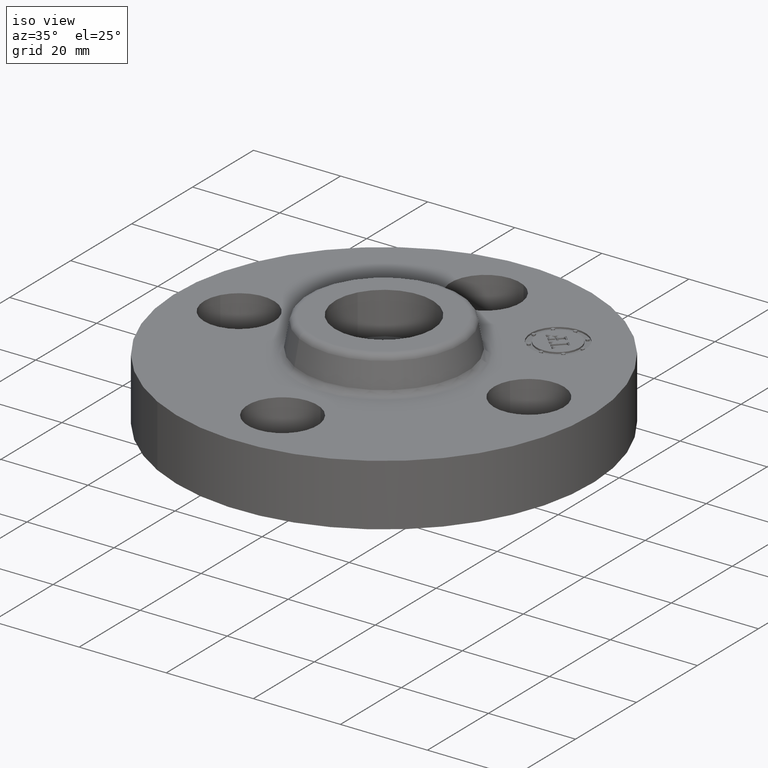
[diagram: clean part render]
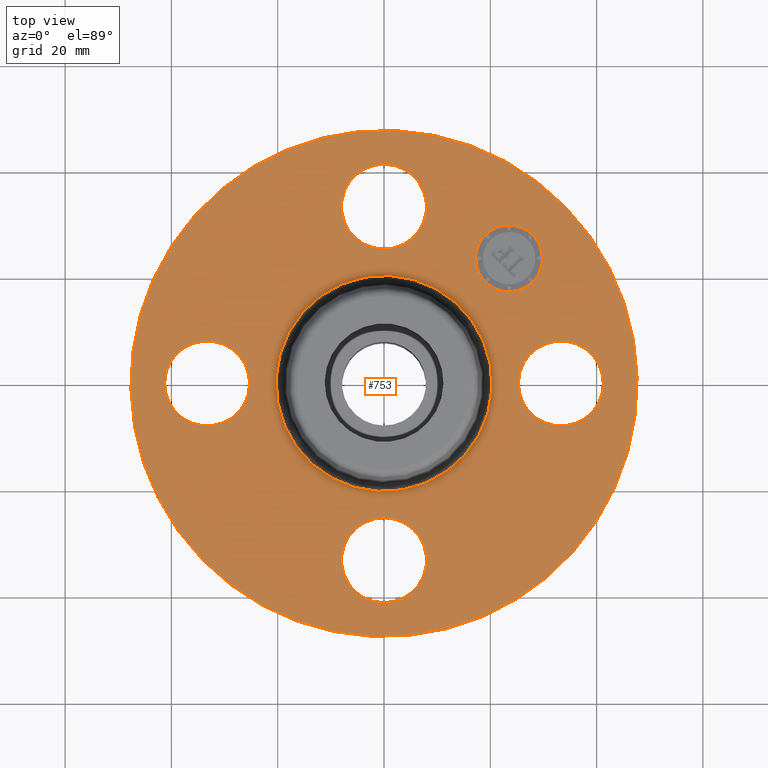
[diagram: tour spotlight — one face highlighted and labeled with its STEP entity id]
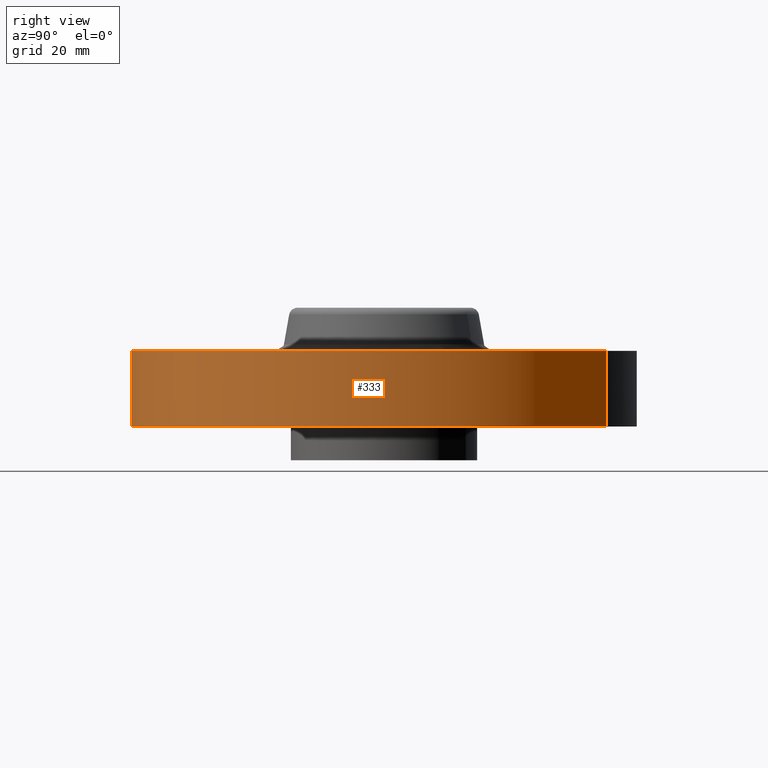
[diagram: tour spotlight — one face highlighted and labeled with its STEP entity id]
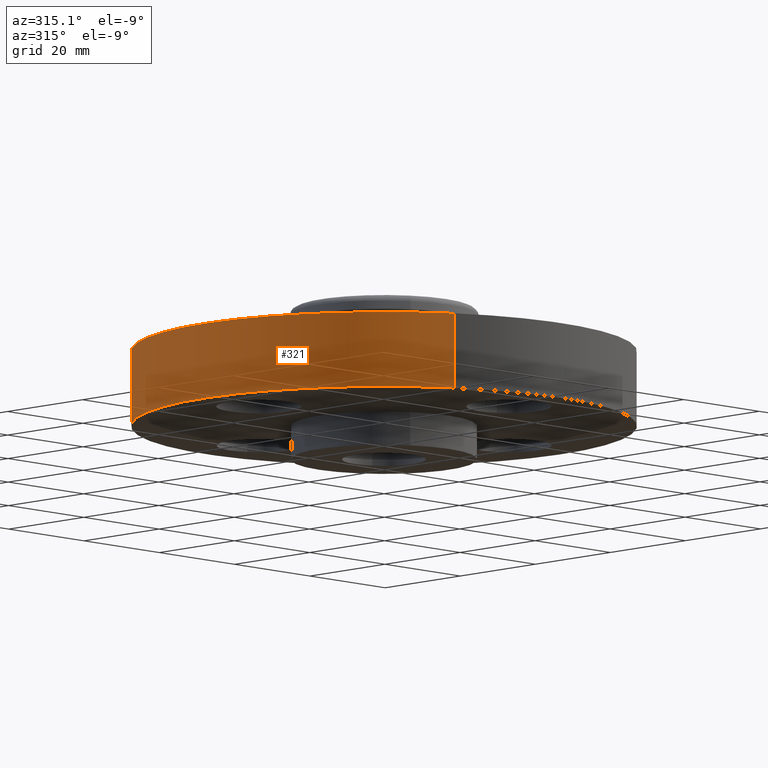
[diagram: tour spotlight — one face highlighted and labeled with its STEP entity id]
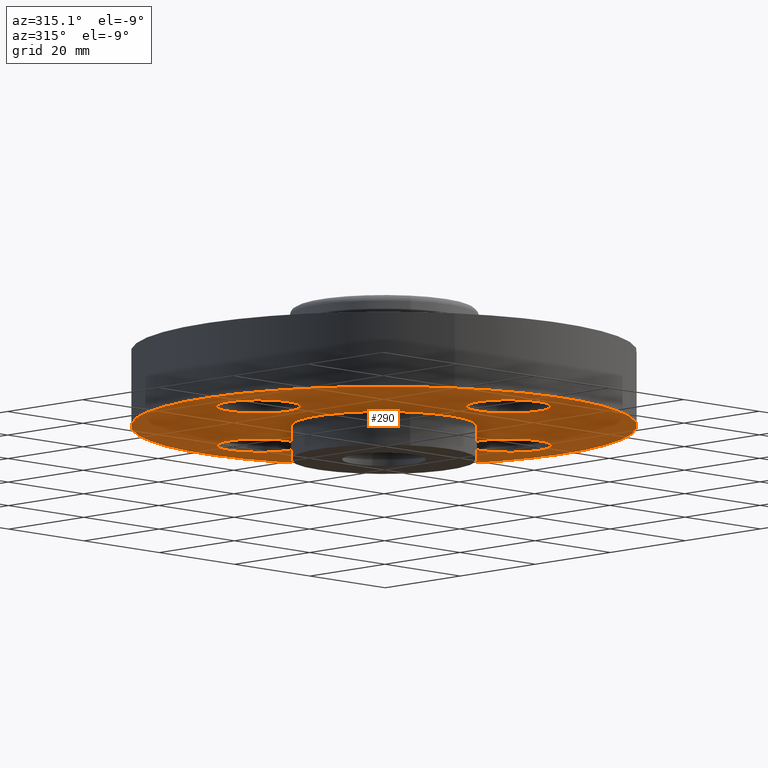
[diagram: tour spotlight — one face highlighted and labeled with its STEP entity id]
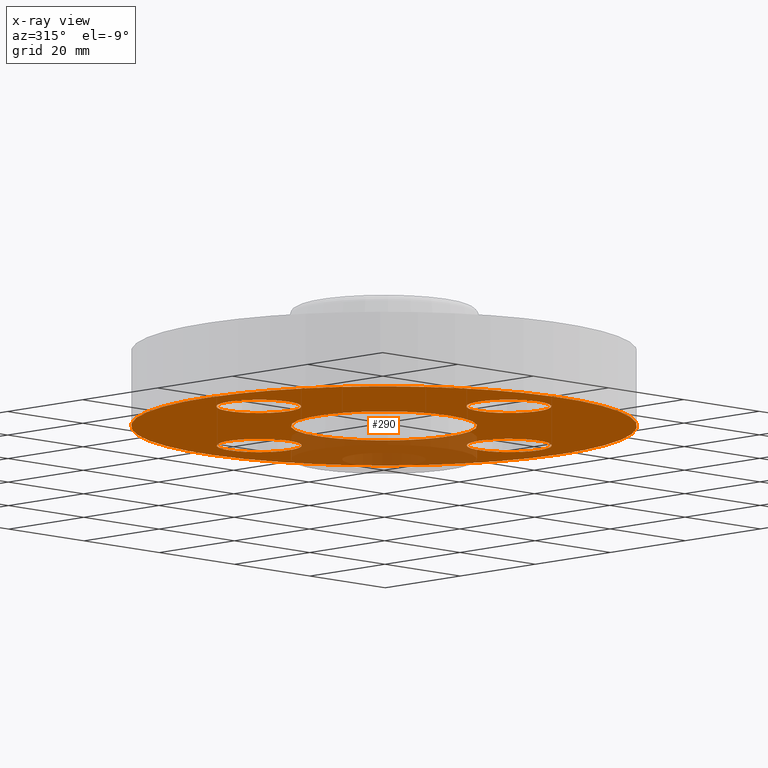
[diagram: x-ray of the same camera — body ghosted, this tour face saturated]
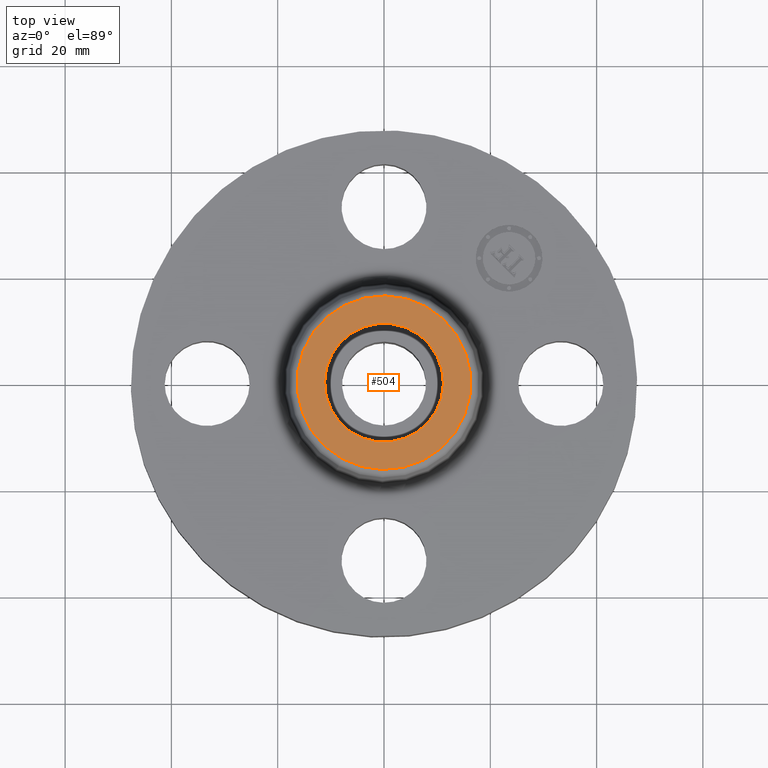
[diagram: tour spotlight — one face highlighted and labeled with its STEP entity id]
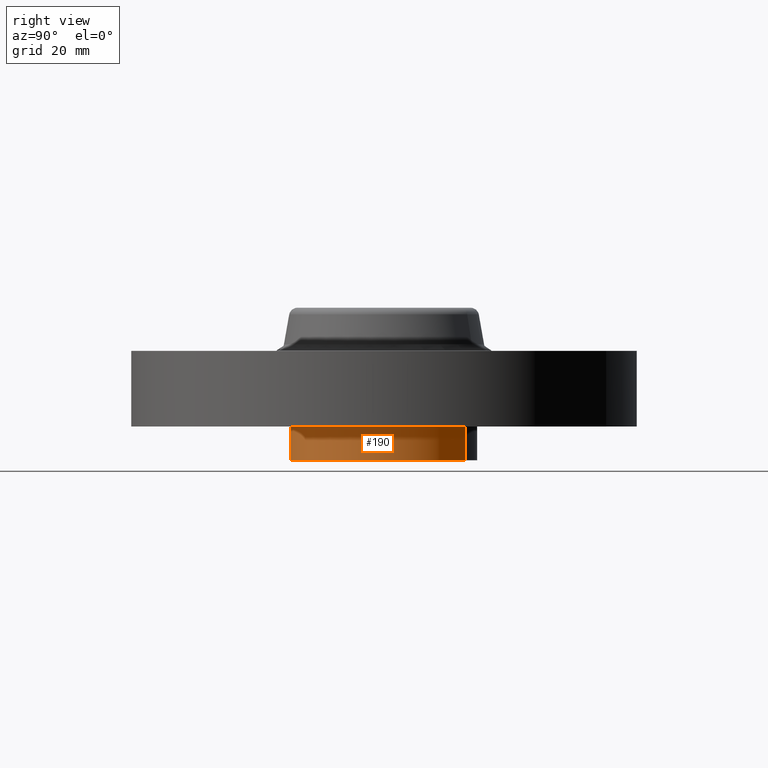
[diagram: tour spotlight — one face highlighted and labeled with its STEP entity id]
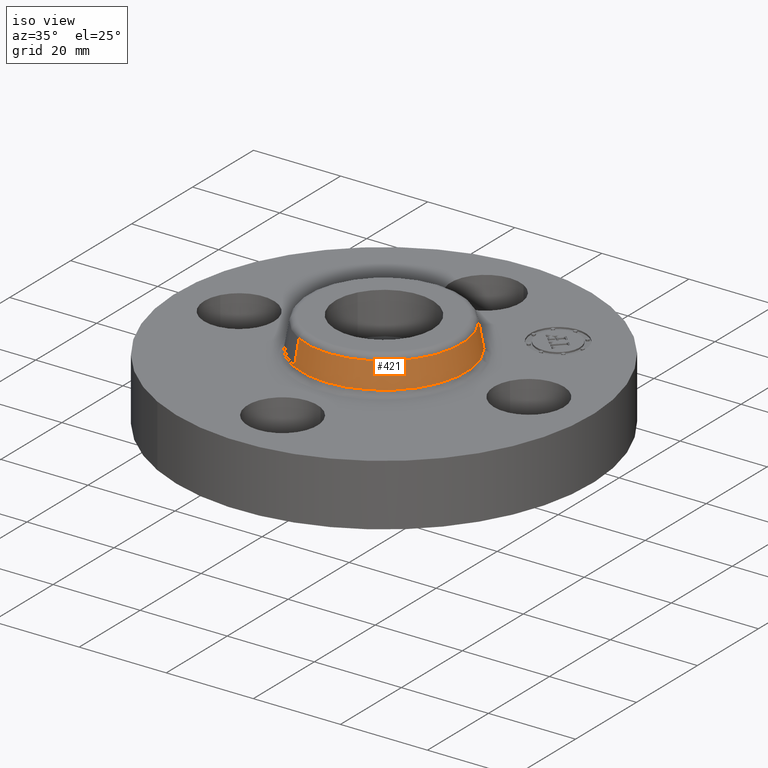
[diagram: tour spotlight — one face highlighted and labeled with its STEP entity id]
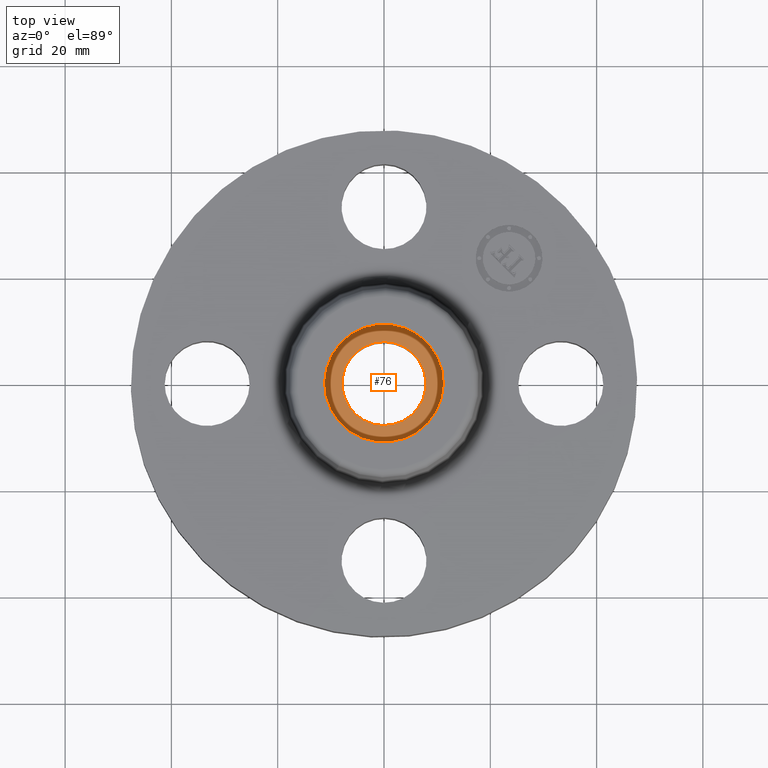
[diagram: tour spotlight — one face highlighted and labeled with its STEP entity id]
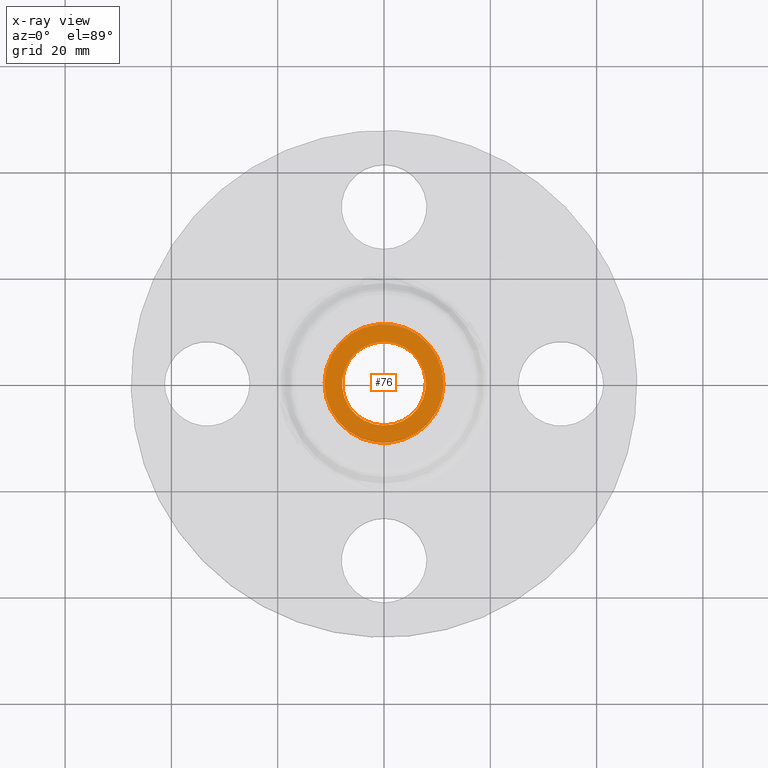
[diagram: x-ray of the same camera — body ghosted, this tour face saturated]
A machine part: a face-by-face anatomy tour. The part has 412 B-rep faces; the first image is the clean iso view, then the 8 largest visible faces are spotlighted one at a time (largest first), each with its STEP entity span.

Face 1 — top view, entity #753. In plain terms, the highlighted planar face has unit normal (0, 0, -1).
Definition (entity closure, byte-faithful):
#305=AXIS2_PLACEMENT_3D('Circle Axis2P3D',#303,#304,$) ;
#324=AXIS2_PLACEMENT_3D('Circle Axis2P3D',#322,#323,$) ;
#341=AXIS2_PLACEMENT_3D('Circle Axis2P3D',#339,#340,$) ;
#376=AXIS2_PLACEMENT_3D('Circle Axis2P3D',#374,#375,$) ;
#526=AXIS2_PLACEMENT_3D('Circle Axis2P3D',#524,#525,$) ;
#538=AXIS2_PLACEMENT_3D('Circle Axis2P3D',#536,#537,$) ;
#569=AXIS2_PLACEMENT_3D('Circle Axis2P3D',#567,#568,$) ;
#581=AXIS2_PLACEMENT_3D('Circle Axis2P3D',#579,#580,$) ;
#612=AXIS2_PLACEMENT_3D('Circle Axis2P3D',#610,#611,$) ;
#624=AXIS2_PLACEMENT_3D('Circle Axis2P3D',#622,#623,$) ;
#655=AXIS2_PLACEMENT_3D('Circle Axis2P3D',#653,#654,$) ;
#667=AXIS2_PLACEMENT_3D('Circle Axis2P3D',#665,#666,$) ;
#709=AXIS2_PLACEMENT_3D('Plane Axis2P3D',#706,#707,#708) ;
#737=AXIS2_PLACEMENT_3D('Circle Axis2P3D',#735,#736,$) ;
#746=AXIS2_PLACEMENT_3D('Circle Axis2P3D',#744,#745,$) ;
#300=CARTESIAN_POINT('Vertex',(-0.898922884886,-1.64546730355,0.560000000002)) ;
#303=CARTESIAN_POINT('Axis2P3D Location',(0.,0.,0.560000000002)) ;
#307=CARTESIAN_POINT('Vertex',(0.898922884886,1.64546730355,0.560000000002)) ;
#322=CARTESIAN_POINT('Axis2P3D Location',(0.,0.,0.560000000002)) ;
#339=CARTESIAN_POINT('Axis2P3D Location',(0.,0.,0.560000000002)) ;
#343=CARTESIAN_POINT('Vertex',(0.383706301512,0.702369673661,0.560000000002)) ;
#345=CARTESIAN_POINT('Vertex',(-0.383706301512,-0.702369673661,0.560000000002)) ;
#374=CARTESIAN_POINT('Axis2P3D Location',(0.,0.,0.560000000002)) ;
#514=CARTESIAN_POINT('Vertex',(0.151019044661,1.586438507,0.560000000002)) ;
#521=CARTESIAN_POINT('Vertex',(-0.151019044661,1.03356149301,0.560000000002)) ;
#524=CARTESIAN_POINT('Axis2P3D Location',(-2.40643096033E-016,1.31000000001,0.560000000002)) ;
#536=CARTESIAN_POINT('Axis2P3D Location',(-2.40643096033E-016,1.31000000001,0.560000000002)) ;
#557=CARTESIAN_POINT('Vertex',(-1.586438507,0.151019044661,0.560000000002)) ;
#564=CARTESIAN_POINT('Vertex',(-1.03356149301,-0.151019044661,0.560000000002)) ;
#567=CARTESIAN_POINT('Axis2P3D Location',(-1.31000000001,-1.60428730689E-016,0.560000000002)) ;
#579=CARTESIAN_POINT('Axis2P3D Location',(-1.31000000001,-1.60428730689E-016,0.560000000002)) ;
#600=CARTESIAN_POINT('Vertex',(-0.151019044661,-1.586438507,0.560000000002)) ;
#607=CARTESIAN_POINT('Vertex',(0.151019044661,-1.03356149301,0.560000000002)) ;
#610=CARTESIAN_POINT('Axis2P3D Location',(-1.99526869207E-016,-1.31000000001,0.560000000002)) ;
#622=CARTESIAN_POINT('Axis2P3D Location',(-1.99526869207E-016,-1.31000000001,0.560000000002)) ;
#643=CARTESIAN_POINT('Vertex',(1.03356149301,0.151019044661,0.560000000002)) ;
#650=CARTESIAN_POINT('Vertex',(1.586438507,-0.151019044661,0.560000000002)) ;
#653=CARTESIAN_POINT('Axis2P3D Location',(1.31000000001,0.,0.560000000002)) ;
#665=CARTESIAN_POINT('Axis2P3D Location',(1.31000000001,0.,0.560000000002)) ;
#706=CARTESIAN_POINT('Axis2P3D Location',(0.,1.87500000001,0.560000000002)) ;
#735=CARTESIAN_POINT('Axis2P3D Location',(0.926309883358,0.926309883358,0.560000000002)) ;
#739=CARTESIAN_POINT('Vertex',(0.751300955014,1.1013188117,0.560000000002)) ;
#741=CARTESIAN_POINT('Vertex',(1.1013188117,0.751300955014,0.560000000002)) ;
#744=CARTESIAN_POINT('Axis2P3D Location',(0.926309883358,0.926309883358,0.560000000002)) ;
#304=DIRECTION('Axis2P3D Direction',(0.,0.,-0.0393700787402)) ;
#323=DIRECTION('Axis2P3D Direction',(0.,0.,-0.0393700787402)) ;
#340=DIRECTION('Axis2P3D Direction',(0.,0.,-0.0393700787402)) ;
#375=DIRECTION('Axis2P3D Direction',(0.,0.,-0.0393700787402)) ;
#525=DIRECTION('Axis2P3D Direction',(0.,0.,-0.0393700787402)) ;
#537=DIRECTION('Axis2P3D Direction',(0.,0.,-0.0393700787402)) ;
#568=DIRECTION('Axis2P3D Direction',(-0.,0.,-0.0393700787402)) ;
#580=DIRECTION('Axis2P3D Direction',(-0.,0.,-0.0393700787402)) ;
#611=DIRECTION('Axis2P3D Direction',(0.,-0.,-0.0393700787402)) ;
#623=DIRECTION('Axis2P3D Direction',(0.,-0.,-0.0393700787402)) ;
#654=DIRECTION('Axis2P3D Direction',(0.,-0.,-0.0393700787402)) ;
#666=DIRECTION('Axis2P3D Direction',(0.,-0.,-0.0393700787402)) ;
#707=DIRECTION('Axis2P3D Direction',(0.,0.,-0.0393700787402)) ;
#708=DIRECTION('Axis2P3D XDirection',(0.0393700787402,0.,0.)) ;
#736=DIRECTION('Axis2P3D Direction',(0.,0.,-0.0393700787402)) ;
#745=DIRECTION('Axis2P3D Direction',(0.,0.,-0.0393700787402)) ;
#712=ORIENTED_EDGE('',*,*,#326,.F.) ;
#713=ORIENTED_EDGE('',*,*,#309,.F.) ;
#716=ORIENTED_EDGE('',*,*,#657,.T.) ;
#717=ORIENTED_EDGE('',*,*,#669,.T.) ;
#720=ORIENTED_EDGE('',*,*,#378,.T.) ;
#721=ORIENTED_EDGE('',*,*,#347,.T.) ;
#724=ORIENTED_EDGE('',*,*,#614,.T.) ;
#725=ORIENTED_EDGE('',*,*,#626,.T.) ;
#728=ORIENTED_EDGE('',*,*,#571,.T.) ;
#729=ORIENTED_EDGE('',*,*,#583,.T.) ;
#732=ORIENTED_EDGE('',*,*,#528,.T.) ;
#733=ORIENTED_EDGE('',*,*,#540,.T.) ;
#750=ORIENTED_EDGE('',*,*,#743,.T.) ;
#751=ORIENTED_EDGE('',*,*,#748,.T.) ;
#718=FACE_BOUND('',#715,.T.) ;
#722=FACE_BOUND('',#719,.T.) ;
#726=FACE_BOUND('',#723,.T.) ;
#730=FACE_BOUND('',#727,.T.) ;
#734=FACE_BOUND('',#731,.T.) ;
#752=FACE_BOUND('',#749,.T.) ;
#753=ADVANCED_FACE('PartBody',(#714,#718,#722,#726,#730,#734,#752),#710,.F.) ;
#306=CIRCLE('generated circle',#305,1.87500000001) ;
#325=CIRCLE('generated circle',#324,1.87500000001) ;
#342=CIRCLE('generated circle',#341,0.800345977874) ;
#377=CIRCLE('generated circle',#376,0.800345977874) ;
#527=CIRCLE('generated circle',#526,0.315000000001) ;
#539=CIRCLE('generated circle',#538,0.315000000001) ;
#570=CIRCLE('generated circle',#569,0.315000000001) ;
#582=CIRCLE('generated circle',#581,0.315000000001) ;
#613=CIRCLE('generated circle',#612,0.315000000001) ;
#625=CIRCLE('generated circle',#624,0.315000000001) ;
#656=CIRCLE('generated circle',#655,0.315000000001) ;
#668=CIRCLE('generated circle',#667,0.315000000001) ;
#738=CIRCLE('generated circle',#737,0.247500000001) ;
#747=CIRCLE('generated circle',#746,0.247500000001) ;
#309=EDGE_CURVE('',#301,#308,#306,.T.) ;
#326=EDGE_CURVE('',#308,#301,#325,.T.) ;
#347=EDGE_CURVE('',#344,#346,#342,.T.) ;
#378=EDGE_CURVE('',#346,#344,#377,.T.) ;
#528=EDGE_CURVE('',#515,#522,#527,.T.) ;
#540=EDGE_CURVE('',#522,#515,#539,.T.) ;
#571=EDGE_CURVE('',#558,#565,#570,.T.) ;
#583=EDGE_CURVE('',#565,#558,#582,.T.) ;
#614=EDGE_CURVE('',#601,#608,#613,.T.) ;
#626=EDGE_CURVE('',#608,#601,#625,.T.) ;
#657=EDGE_CURVE('',#644,#651,#656,.T.) ;
#669=EDGE_CURVE('',#651,#644,#668,.T.) ;
#743=EDGE_CURVE('',#740,#742,#738,.T.) ;
#748=EDGE_CURVE('',#742,#740,#747,.T.) ;
#711=EDGE_LOOP('',(#712,#713)) ;
#715=EDGE_LOOP('',(#716,#717)) ;
#719=EDGE_LOOP('',(#720,#721)) ;
#723=EDGE_LOOP('',(#724,#725)) ;
#727=EDGE_LOOP('',(#728,#729)) ;
#731=EDGE_LOOP('',(#732,#733)) ;
#749=EDGE_LOOP('',(#750,#751)) ;
#714=FACE_OUTER_BOUND('',#711,.T.) ;
#710=PLANE('',#709) ;
#301=VERTEX_POINT('',#300) ;
#308=VERTEX_POINT('',#307) ;
#344=VERTEX_POINT('',#343) ;
#346=VERTEX_POINT('',#345) ;
#515=VERTEX_POINT('',#514) ;
#522=VERTEX_POINT('',#521) ;
#558=VERTEX_POINT('',#557) ;
#565=VERTEX_POINT('',#564) ;
#601=VERTEX_POINT('',#600) ;
#608=VERTEX_POINT('',#607) ;
#644=VERTEX_POINT('',#643) ;
#651=VERTEX_POINT('',#650) ;
#740=VERTEX_POINT('',#739) ;
#742=VERTEX_POINT('',#741) ;

Face 2 — right view, entity #333. In plain terms, the highlighted cylindrical surface (partial cylindrical patch) has radius 47.625 mm, axis along (0, 0, -1).
Definition (entity closure, byte-faithful):
#207=AXIS2_PLACEMENT_3D('Circle Axis2P3D',#205,#206,$) ;
#294=AXIS2_PLACEMENT_3D('Cylinder Axis2P3D',#291,#292,#293) ;
#324=AXIS2_PLACEMENT_3D('Circle Axis2P3D',#322,#323,$) ;
#200=CARTESIAN_POINT('Vertex',(-0.898922884886,-1.64546730355,0.)) ;
#202=CARTESIAN_POINT('Vertex',(0.898922884886,1.64546730355,0.)) ;
#205=CARTESIAN_POINT('Axis2P3D Location',(0.,0.,0.)) ;
#291=CARTESIAN_POINT('Axis2P3D Location',(0.,0.,0.315000000001)) ;
#296=CARTESIAN_POINT('Line Origine',(-0.898922884886,-1.64546730355,0.280000000001)) ;
#300=CARTESIAN_POINT('Vertex',(-0.898922884886,-1.64546730355,0.560000000002)) ;
#307=CARTESIAN_POINT('Vertex',(0.898922884886,1.64546730355,0.560000000002)) ;
#310=CARTESIAN_POINT('Line Origine',(0.898922884886,1.64546730355,0.280000000001)) ;
#322=CARTESIAN_POINT('Axis2P3D Location',(0.,0.,0.560000000002)) ;
#206=DIRECTION('Axis2P3D Direction',(0.,0.,-0.0393700787402)) ;
#292=DIRECTION('Axis2P3D Direction',(0.,0.,-0.0393700787402)) ;
#293=DIRECTION('Axis2P3D XDirection',(0.0188750212049,0.0345504945626,0.)) ;
#297=DIRECTION('Vector Direction',(0.,0.,-0.0393700787402)) ;
#311=DIRECTION('Vector Direction',(0.,0.,-0.0393700787402)) ;
#323=DIRECTION('Axis2P3D Direction',(0.,0.,-0.0393700787402)) ;
#298=VECTOR('Line Direction',#297,0.0393700787402) ;
#312=VECTOR('Line Direction',#311,0.0393700787402) ;
#328=ORIENTED_EDGE('',*,*,#209,.F.) ;
#329=ORIENTED_EDGE('',*,*,#314,.T.) ;
#330=ORIENTED_EDGE('',*,*,#326,.T.) ;
#331=ORIENTED_EDGE('',*,*,#302,.F.) ;
#333=ADVANCED_FACE('PartBody',(#332),#295,.T.) ;
#208=CIRCLE('generated circle',#207,1.87500000001) ;
#325=CIRCLE('generated circle',#324,1.87500000001) ;
#295=CYLINDRICAL_SURFACE('generated cylinder',#294,1.87500000001) ;
#209=EDGE_CURVE('',#203,#201,#208,.T.) ;
#302=EDGE_CURVE('',#201,#301,#299,.F.) ;
#314=EDGE_CURVE('',#203,#308,#313,.F.) ;
#326=EDGE_CURVE('',#308,#301,#325,.T.) ;
#327=EDGE_LOOP('',(#328,#329,#330,#331)) ;
#332=FACE_OUTER_BOUND('',#327,.T.) ;
#299=LINE('Line',#296,#298) ;
#313=LINE('Line',#310,#312) ;
#201=VERTEX_POINT('',#200) ;
#203=VERTEX_POINT('',#202) ;
#301=VERTEX_POINT('',#300) ;
#308=VERTEX_POINT('',#307) ;

Face 3 — auxiliary view, entity #321. In plain terms, the highlighted cylindrical surface (partial cylindrical patch) has radius 47.625 mm, axis along (0, 0, -1).
Definition (entity closure, byte-faithful):
#198=AXIS2_PLACEMENT_3D('Circle Axis2P3D',#196,#197,$) ;
#294=AXIS2_PLACEMENT_3D('Cylinder Axis2P3D',#291,#292,#293) ;
#305=AXIS2_PLACEMENT_3D('Circle Axis2P3D',#303,#304,$) ;
#196=CARTESIAN_POINT('Axis2P3D Location',(0.,0.,0.)) ;
#200=CARTESIAN_POINT('Vertex',(-0.898922884886,-1.64546730355,0.)) ;
#202=CARTESIAN_POINT('Vertex',(0.898922884886,1.64546730355,0.)) ;
#291=CARTESIAN_POINT('Axis2P3D Location',(0.,0.,0.315000000001)) ;
#296=CARTESIAN_POINT('Line Origine',(-0.898922884886,-1.64546730355,0.280000000001)) ;
#300=CARTESIAN_POINT('Vertex',(-0.898922884886,-1.64546730355,0.560000000002)) ;
#303=CARTESIAN_POINT('Axis2P3D Location',(0.,0.,0.560000000002)) ;
#307=CARTESIAN_POINT('Vertex',(0.898922884886,1.64546730355,0.560000000002)) ;
#310=CARTESIAN_POINT('Line Origine',(0.898922884886,1.64546730355,0.280000000001)) ;
#197=DIRECTION('Axis2P3D Direction',(0.,0.,-0.0393700787402)) ;
#292=DIRECTION('Axis2P3D Direction',(0.,0.,-0.0393700787402)) ;
#293=DIRECTION('Axis2P3D XDirection',(0.0188750212049,0.0345504945626,0.)) ;
#297=DIRECTION('Vector Direction',(0.,0.,-0.0393700787402)) ;
#304=DIRECTION('Axis2P3D Direction',(0.,0.,-0.0393700787402)) ;
#311=DIRECTION('Vector Direction',(0.,0.,-0.0393700787402)) ;
#298=VECTOR('Line Direction',#297,0.0393700787402) ;
#312=VECTOR('Line Direction',#311,0.0393700787402) ;
#316=ORIENTED_EDGE('',*,*,#204,.F.) ;
#317=ORIENTED_EDGE('',*,*,#302,.T.) ;
#318=ORIENTED_EDGE('',*,*,#309,.T.) ;
#319=ORIENTED_EDGE('',*,*,#314,.F.) ;
#321=ADVANCED_FACE('PartBody',(#320),#295,.T.) ;
#199=CIRCLE('generated circle',#198,1.87500000001) ;
#306=CIRCLE('generated circle',#305,1.87500000001) ;
#295=CYLINDRICAL_SURFACE('generated cylinder',#294,1.87500000001) ;
#204=EDGE_CURVE('',#201,#203,#199,.T.) ;
#302=EDGE_CURVE('',#201,#301,#299,.F.) ;
#309=EDGE_CURVE('',#301,#308,#306,.T.) ;
#314=EDGE_CURVE('',#203,#308,#313,.F.) ;
#315=EDGE_LOOP('',(#316,#317,#318,#319)) ;
#320=FACE_OUTER_BOUND('',#315,.T.) ;
#299=LINE('Line',#296,#298) ;
#313=LINE('Line',#310,#312) ;
#201=VERTEX_POINT('',#200) ;
#203=VERTEX_POINT('',#202) ;
#301=VERTEX_POINT('',#300) ;
#308=VERTEX_POINT('',#307) ;

Face 4 — auxiliary view, entity #290. An x-ray twin of the same camera follows (body ghosted, this face saturated) — the face is partly hidden behind the body. In plain terms, the highlighted planar face has unit normal (0, 0, -1).
Definition (entity closure, byte-faithful):
#162=AXIS2_PLACEMENT_3D('Circle Axis2P3D',#160,#161,$) ;
#181=AXIS2_PLACEMENT_3D('Circle Axis2P3D',#179,#180,$) ;
#194=AXIS2_PLACEMENT_3D('Plane Axis2P3D',#191,#192,#193) ;
#198=AXIS2_PLACEMENT_3D('Circle Axis2P3D',#196,#197,$) ;
#207=AXIS2_PLACEMENT_3D('Circle Axis2P3D',#205,#206,$) ;
#216=AXIS2_PLACEMENT_3D('Circle Axis2P3D',#214,#215,$) ;
#225=AXIS2_PLACEMENT_3D('Circle Axis2P3D',#223,#224,$) ;
#238=AXIS2_PLACEMENT_3D('Circle Axis2P3D',#236,#237,$) ;
#247=AXIS2_PLACEMENT_3D('Circle Axis2P3D',#245,#246,$) ;
#256=AXIS2_PLACEMENT_3D('Circle Axis2P3D',#254,#255,$) ;
#265=AXIS2_PLACEMENT_3D('Circle Axis2P3D',#263,#264,$) ;
#274=AXIS2_PLACEMENT_3D('Circle Axis2P3D',#272,#273,$) ;
#283=AXIS2_PLACEMENT_3D('Circle Axis2P3D',#281,#282,$) ;
#157=CARTESIAN_POINT('Vertex',(-0.330803621638,-0.605531967707,1.39870617276E-016)) ;
#160=CARTESIAN_POINT('Axis2P3D Location',(0.,0.,1.39870617276E-016)) ;
#164=CARTESIAN_POINT('Vertex',(0.330803621638,0.605531967707,1.39870617276E-016)) ;
#179=CARTESIAN_POINT('Axis2P3D Location',(0.,0.,1.39870617276E-016)) ;
#191=CARTESIAN_POINT('Axis2P3D Location',(0.,0.690000000003,0.)) ;
#196=CARTESIAN_POINT('Axis2P3D Location',(0.,0.,0.)) ;
#200=CARTESIAN_POINT('Vertex',(-0.898922884886,-1.64546730355,0.)) ;
#202=CARTESIAN_POINT('Vertex',(0.898922884886,1.64546730355,0.)) ;
#205=CARTESIAN_POINT('Axis2P3D Location',(0.,0.,0.)) ;
#214=CARTESIAN_POINT('Axis2P3D Location',(1.31000000001,1.39870617276E-016,0.)) ;
#218=CARTESIAN_POINT('Vertex',(1.586438507,-0.151019044661,6.99353086378E-017)) ;
#220=CARTESIAN_POINT('Vertex',(1.03356149301,0.151019044661,6.99353086378E-017)) ;
#223=CARTESIAN_POINT('Axis2P3D Location',(1.31000000001,-1.39870617276E-016,0.)) ;
#236=CARTESIAN_POINT('Axis2P3D Location',(-3.49676543189E-017,-1.31000000001,0.)) ;
#240=CARTESIAN_POINT('Vertex',(0.151019044661,-1.03356149301,0.)) ;
#242=CARTESIAN_POINT('Vertex',(-0.151019044661,-1.586438507,6.99353086378E-017)) ;
#245=CARTESIAN_POINT('Axis2P3D Location',(-1.39870617276E-016,-1.31000000001,0.)) ;
#254=CARTESIAN_POINT('Axis2P3D Location',(-1.31000000001,-1.39870617276E-016,0.)) ;
#258=CARTESIAN_POINT('Vertex',(-1.03356149301,-0.151019044661,0.)) ;
#260=CARTESIAN_POINT('Vertex',(-1.586438507,0.151019044661,6.99353086378E-017)) ;
#263=CARTESIAN_POINT('Axis2P3D Location',(-1.31000000001,0.,0.)) ;
#272=CARTESIAN_POINT('Axis2P3D Location',(-3.1470888887E-016,1.31000000001,0.)) ;
#276=CARTESIAN_POINT('Vertex',(-0.151019044661,1.03356149301,0.)) ;
#278=CARTESIAN_POINT('Vertex',(0.151019044661,1.586438507,6.99353086378E-017)) ;
#281=CARTESIAN_POINT('Axis2P3D Location',(-3.1470888887E-016,1.31000000001,0.)) ;
#161=DIRECTION('Axis2P3D Direction',(0.,0.,-0.0393700787402)) ;
#180=DIRECTION('Axis2P3D Direction',(0.,0.,-0.0393700787402)) ;
#192=DIRECTION('Axis2P3D Direction',(0.,0.,-0.0393700787402)) ;
#193=DIRECTION('Axis2P3D XDirection',(0.0393700787402,0.,0.)) ;
#197=DIRECTION('Axis2P3D Direction',(0.,0.,-0.0393700787402)) ;
#206=DIRECTION('Axis2P3D Direction',(0.,0.,-0.0393700787402)) ;
#215=DIRECTION('Axis2P3D Direction',(0.,0.,-0.0393700787402)) ;
#224=DIRECTION('Axis2P3D Direction',(0.,0.,-0.0393700787402)) ;
#237=DIRECTION('Axis2P3D Direction',(0.,0.,-0.0393700787402)) ;
#246=DIRECTION('Axis2P3D Direction',(0.,0.,-0.0393700787402)) ;
#255=DIRECTION('Axis2P3D Direction',(0.,0.,-0.0393700787402)) ;
#264=DIRECTION('Axis2P3D Direction',(0.,0.,-0.0393700787402)) ;
#273=DIRECTION('Axis2P3D Direction',(0.,0.,-0.0393700787402)) ;
#282=DIRECTION('Axis2P3D Direction',(0.,0.,-0.0393700787402)) ;
#211=ORIENTED_EDGE('',*,*,#204,.T.) ;
#212=ORIENTED_EDGE('',*,*,#209,.T.) ;
#229=ORIENTED_EDGE('',*,*,#222,.F.) ;
#230=ORIENTED_EDGE('',*,*,#227,.F.) ;
#233=ORIENTED_EDGE('',*,*,#183,.F.) ;
#234=ORIENTED_EDGE('',*,*,#166,.F.) ;
#251=ORIENTED_EDGE('',*,*,#244,.F.) ;
#252=ORIENTED_EDGE('',*,*,#249,.F.) ;
#269=ORIENTED_EDGE('',*,*,#262,.F.) ;
#270=ORIENTED_EDGE('',*,*,#267,.F.) ;
#287=ORIENTED_EDGE('',*,*,#280,.F.) ;
#288=ORIENTED_EDGE('',*,*,#285,.F.) ;
#231=FACE_BOUND('',#228,.T.) ;
#235=FACE_BOUND('',#232,.T.) ;
#253=FACE_BOUND('',#250,.T.) ;
#271=FACE_BOUND('',#268,.T.) ;
#289=FACE_BOUND('',#286,.T.) ;
#290=ADVANCED_FACE('PartBody',(#213,#231,#235,#253,#271,#289),#195,.T.) ;
#163=CIRCLE('generated circle',#162,0.690000000003) ;
#182=CIRCLE('generated circle',#181,0.690000000003) ;
#199=CIRCLE('generated circle',#198,1.87500000001) ;
#208=CIRCLE('generated circle',#207,1.87500000001) ;
#217=CIRCLE('generated circle',#216,0.315000000001) ;
#226=CIRCLE('generated circle',#225,0.315000000001) ;
#239=CIRCLE('generated circle',#238,0.315000000001) ;
#248=CIRCLE('generated circle',#247,0.315000000001) ;
#257=CIRCLE('generated circle',#256,0.315000000001) ;
#266=CIRCLE('generated circle',#265,0.315000000001) ;
#275=CIRCLE('generated circle',#274,0.315000000001) ;
#284=CIRCLE('generated circle',#283,0.315000000001) ;
#166=EDGE_CURVE('',#158,#165,#163,.T.) ;
#183=EDGE_CURVE('',#165,#158,#182,.T.) ;
#204=EDGE_CURVE('',#201,#203,#199,.T.) ;
#209=EDGE_CURVE('',#203,#201,#208,.T.) ;
#222=EDGE_CURVE('',#219,#221,#217,.T.) ;
#227=EDGE_CURVE('',#221,#219,#226,.T.) ;
#244=EDGE_CURVE('',#241,#243,#239,.T.) ;
#249=EDGE_CURVE('',#243,#241,#248,.T.) ;
#262=EDGE_CURVE('',#259,#261,#257,.T.) ;
#267=EDGE_CURVE('',#261,#259,#266,.T.) ;
#280=EDGE_CURVE('',#277,#279,#275,.T.) ;
#285=EDGE_CURVE('',#279,#277,#284,.T.) ;
#210=EDGE_LOOP('',(#211,#212)) ;
#228=EDGE_LOOP('',(#229,#230)) ;
#232=EDGE_LOOP('',(#233,#234)) ;
#250=EDGE_LOOP('',(#251,#252)) ;
#268=EDGE_LOOP('',(#269,#270)) ;
#286=EDGE_LOOP('',(#287,#288)) ;
#213=FACE_OUTER_BOUND('',#210,.T.) ;
#195=PLANE('',#194) ;
#158=VERTEX_POINT('',#157) ;
#165=VERTEX_POINT('',#164) ;
#201=VERTEX_POINT('',#200) ;
#203=VERTEX_POINT('',#202) ;
#219=VERTEX_POINT('',#218) ;
#221=VERTEX_POINT('',#220) ;
#241=VERTEX_POINT('',#240) ;
#243=VERTEX_POINT('',#242) ;
#259=VERTEX_POINT('',#258) ;
#261=VERTEX_POINT('',#260) ;
#277=VERTEX_POINT('',#276) ;
#279=VERTEX_POINT('',#278) ;

Face 5 — top view, entity #504. In plain terms, the highlighted planar face has unit normal (0, 0, -1).
Definition (entity closure, byte-faithful):
#448=AXIS2_PLACEMENT_3D('Circle Axis2P3D',#446,#447,$) ;
#467=AXIS2_PLACEMENT_3D('Circle Axis2P3D',#465,#466,$) ;
#480=AXIS2_PLACEMENT_3D('Plane Axis2P3D',#477,#478,#479) ;
#488=AXIS2_PLACEMENT_3D('Circle Axis2P3D',#486,#487,$) ;
#497=AXIS2_PLACEMENT_3D('Circle Axis2P3D',#495,#496,$) ;
#443=CARTESIAN_POINT('Vertex',(0.308380595934,0.564486894472,0.880000000004)) ;
#446=CARTESIAN_POINT('Axis2P3D Location',(0.,0.,0.880000000004)) ;
#450=CARTESIAN_POINT('Vertex',(-0.308380595934,-0.564486894472,0.880000000004)) ;
#465=CARTESIAN_POINT('Axis2P3D Location',(0.,0.,0.880000000004)) ;
#477=CARTESIAN_POINT('Axis2P3D Location',(0.,0.643229388305,0.880000000004)) ;
#486=CARTESIAN_POINT('Axis2P3D Location',(1.39870617276E-016,1.39870617276E-016,0.880000000004)) ;
#490=CARTESIAN_POINT('Vertex',(-0.386136327233,0.210947236987,0.880000000004)) ;
#492=CARTESIAN_POINT('Vertex',(0.386136327233,-0.210947236987,0.880000000004)) ;
#495=CARTESIAN_POINT('Axis2P3D Location',(1.57354444435E-016,1.39870617276E-016,0.880000000004)) ;
#447=DIRECTION('Axis2P3D Direction',(0.,0.,-0.0393700787402)) ;
#466=DIRECTION('Axis2P3D Direction',(0.,0.,-0.0393700787402)) ;
#478=DIRECTION('Axis2P3D Direction',(0.,0.,-0.0393700787402)) ;
#479=DIRECTION('Axis2P3D XDirection',(0.0393700787402,0.,0.)) ;
#487=DIRECTION('Axis2P3D Direction',(0.,0.,-0.0393700787402)) ;
#496=DIRECTION('Axis2P3D Direction',(0.,0.,-0.0393700787402)) ;
#483=ORIENTED_EDGE('',*,*,#452,.F.) ;
#484=ORIENTED_EDGE('',*,*,#469,.F.) ;
#501=ORIENTED_EDGE('',*,*,#494,.T.) ;
#502=ORIENTED_EDGE('',*,*,#499,.T.) ;
#503=FACE_BOUND('',#500,.T.) ;
#504=ADVANCED_FACE('PartBody',(#485,#503),#481,.F.) ;
#449=CIRCLE('generated circle',#448,0.643229388305) ;
#468=CIRCLE('generated circle',#467,0.643229388305) ;
#489=CIRCLE('generated circle',#488,0.440000000002) ;
#498=CIRCLE('generated circle',#497,0.440000000002) ;
#452=EDGE_CURVE('',#444,#451,#449,.T.) ;
#469=EDGE_CURVE('',#451,#444,#468,.T.) ;
#494=EDGE_CURVE('',#491,#493,#489,.T.) ;
#499=EDGE_CURVE('',#493,#491,#498,.T.) ;
#482=EDGE_LOOP('',(#483,#484)) ;
#500=EDGE_LOOP('',(#501,#502)) ;
#485=FACE_OUTER_BOUND('',#482,.T.) ;
#481=PLANE('',#480) ;
#444=VERTEX_POINT('',#443) ;
#451=VERTEX_POINT('',#450) ;
#491=VERTEX_POINT('',#490) ;
#493=VERTEX_POINT('',#492) ;

Face 6 — right view, entity #190. In plain terms, the highlighted cylindrical surface (partial cylindrical patch) has radius 17.526 mm, axis along (0, 0, -1).
Definition (entity closure, byte-faithful):
#136=AXIS2_PLACEMENT_3D('Circle Axis2P3D',#134,#135,$) ;
#151=AXIS2_PLACEMENT_3D('Cylinder Axis2P3D',#148,#149,#150) ;
#181=AXIS2_PLACEMENT_3D('Circle Axis2P3D',#179,#180,$) ;
#129=CARTESIAN_POINT('Vertex',(-0.330803621638,-0.605531967707,-0.250000000001)) ;
#131=CARTESIAN_POINT('Vertex',(0.330803621638,0.605531967707,-0.250000000001)) ;
#134=CARTESIAN_POINT('Axis2P3D Location',(0.,0.,-0.250000000001)) ;
#148=CARTESIAN_POINT('Axis2P3D Location',(0.,0.,0.315000000001)) ;
#153=CARTESIAN_POINT('Line Origine',(-0.330803621638,-0.605531967707,-0.125)) ;
#157=CARTESIAN_POINT('Vertex',(-0.330803621638,-0.605531967707,1.39870617276E-016)) ;
#164=CARTESIAN_POINT('Vertex',(0.330803621638,0.605531967707,1.39870617276E-016)) ;
#167=CARTESIAN_POINT('Line Origine',(0.330803621638,0.605531967707,-0.125)) ;
#179=CARTESIAN_POINT('Axis2P3D Location',(0.,0.,1.39870617276E-016)) ;
#135=DIRECTION('Axis2P3D Direction',(0.,0.,-0.0393700787402)) ;
#149=DIRECTION('Axis2P3D Direction',(0.,0.,-0.0393700787402)) ;
#150=DIRECTION('Axis2P3D XDirection',(0.0188750212049,0.0345504945626,0.)) ;
#154=DIRECTION('Vector Direction',(0.,0.,-0.0393700787402)) ;
#168=DIRECTION('Vector Direction',(0.,0.,-0.0393700787402)) ;
#180=DIRECTION('Axis2P3D Direction',(0.,0.,-0.0393700787402)) ;
#155=VECTOR('Line Direction',#154,0.0393700787402) ;
#169=VECTOR('Line Direction',#168,0.0393700787402) ;
#185=ORIENTED_EDGE('',*,*,#138,.F.) ;
#186=ORIENTED_EDGE('',*,*,#171,.T.) ;
#187=ORIENTED_EDGE('',*,*,#183,.T.) ;
#188=ORIENTED_EDGE('',*,*,#159,.F.) ;
#190=ADVANCED_FACE('PartBody',(#189),#152,.T.) ;
#137=CIRCLE('generated circle',#136,0.690000000003) ;
#182=CIRCLE('generated circle',#181,0.690000000003) ;
#152=CYLINDRICAL_SURFACE('generated cylinder',#151,0.690000000003) ;
#138=EDGE_CURVE('',#132,#130,#137,.T.) ;
#159=EDGE_CURVE('',#130,#158,#156,.F.) ;
#171=EDGE_CURVE('',#132,#165,#170,.F.) ;
#183=EDGE_CURVE('',#165,#158,#182,.T.) ;
#184=EDGE_LOOP('',(#185,#186,#187,#188)) ;
#189=FACE_OUTER_BOUND('',#184,.T.) ;
#156=LINE('Line',#153,#155) ;
#170=LINE('Line',#167,#169) ;
#130=VERTEX_POINT('',#129) ;
#132=VERTEX_POINT('',#131) ;
#158=VERTEX_POINT('',#157) ;
#165=VERTEX_POINT('',#164) ;

Face 7 — iso view, entity #421. In plain terms, the highlighted conical surface has half-angle 10 deg.
Definition (entity closure, byte-faithful):
#357=AXIS2_PLACEMENT_3D('Circle Axis2P3D',#355,#356,$) ;
#394=AXIS2_PLACEMENT_3D('Cone Axis2P3D',#391,#392,#393) ;
#405=AXIS2_PLACEMENT_3D('Circle Axis2P3D',#403,#404,$) ;
#352=CARTESIAN_POINT('Vertex',(0.355377782267,0.650514667009,0.609581109342)) ;
#355=CARTESIAN_POINT('Axis2P3D Location',(0.,0.,0.609581109342)) ;
#359=CARTESIAN_POINT('Vertex',(-0.355377782267,-0.650514667009,0.609581109342)) ;
#391=CARTESIAN_POINT('Axis2P3D Location',(0.,0.,0.830418890663)) ;
#396=CARTESIAN_POINT('Line Origine',(0.346043448723,0.633428284067,0.720000000003)) ;
#400=CARTESIAN_POINT('Vertex',(0.336709115179,0.616341901124,0.830418890663)) ;
#403=CARTESIAN_POINT('Axis2P3D Location',(0.,0.,0.830418890663)) ;
#407=CARTESIAN_POINT('Vertex',(-0.336709115179,-0.616341901124,0.830418890663)) ;
#410=CARTESIAN_POINT('Line Origine',(-0.346043448723,-0.633428284067,0.720000000003)) ;
#356=DIRECTION('Axis2P3D Direction',(0.,0.,-0.0393700787402)) ;
#392=DIRECTION('Axis2P3D Direction',(0.,0.,-0.0393700787402)) ;
#393=DIRECTION('Axis2P3D XDirection',(-0.0188750212049,-0.0345504945626,0.)) ;
#397=DIRECTION('Vector Direction',(0.00327761303565,0.00599963041829,-0.03877195878)) ;
#404=DIRECTION('Axis2P3D Direction',(0.,0.,-0.0393700787402)) ;
#411=DIRECTION('Vector Direction',(-0.00327761303565,-0.00599963041829,-0.03877195878)) ;
#398=VECTOR('Line Direction',#397,0.0393700787402) ;
#412=VECTOR('Line Direction',#411,0.0393700787402) ;
#416=ORIENTED_EDGE('',*,*,#361,.F.) ;
#417=ORIENTED_EDGE('',*,*,#402,.T.) ;
#418=ORIENTED_EDGE('',*,*,#409,.T.) ;
#419=ORIENTED_EDGE('',*,*,#414,.F.) ;
#421=ADVANCED_FACE('PartBody',(#420),#395,.T.) ;
#358=CIRCLE('generated circle',#357,0.741257512693) ;
#406=CIRCLE('generated circle',#405,0.702317853486) ;
#395=CONICAL_SURFACE('Cone',#394,0.702317853486,0.174532925199) ;
#361=EDGE_CURVE('',#353,#360,#358,.T.) ;
#402=EDGE_CURVE('',#353,#401,#399,.F.) ;
#409=EDGE_CURVE('',#401,#408,#406,.T.) ;
#414=EDGE_CURVE('',#360,#408,#413,.F.) ;
#415=EDGE_LOOP('',(#416,#417,#418,#419)) ;
#420=FACE_OUTER_BOUND('',#415,.T.) ;
#399=LINE('Line',#396,#398) ;
#413=LINE('Line',#410,#412) ;
#353=VERTEX_POINT('',#352) ;
#360=VERTEX_POINT('',#359) ;
#401=VERTEX_POINT('',#400) ;
#408=VERTEX_POINT('',#407) ;

Face 8 — top view, entity #76. An x-ray twin of the same camera follows (body ghosted, this face saturated) — the face is partly hidden behind the body. In plain terms, the highlighted planar face has unit normal (0, 0, -1).
Definition (entity closure, byte-faithful):
#38=AXIS2_PLACEMENT_3D('Plane Axis2P3D',#35,#36,#37) ;
#42=AXIS2_PLACEMENT_3D('Circle Axis2P3D',#40,#41,$) ;
#51=AXIS2_PLACEMENT_3D('Circle Axis2P3D',#49,#50,$) ;
#60=AXIS2_PLACEMENT_3D('Circle Axis2P3D',#58,#59,$) ;
#69=AXIS2_PLACEMENT_3D('Circle Axis2P3D',#67,#68,$) ;
#35=CARTESIAN_POINT('Axis2P3D Location',(1.39870617276E-016,1.04902962957E-016,0.500000000002)) ;
#40=CARTESIAN_POINT('Axis2P3D Location',(1.39870617276E-016,1.04902962957E-016,0.500000000002)) ;
#44=CARTESIAN_POINT('Vertex',(-0.386136327233,0.210947236987,0.500000000002)) ;
#46=CARTESIAN_POINT('Vertex',(0.386136327233,-0.210947236987,0.500000000002)) ;
#49=CARTESIAN_POINT('Axis2P3D Location',(1.39870617276E-016,1.04902962957E-016,0.500000000002)) ;
#58=CARTESIAN_POINT('Axis2P3D Location',(1.04902962957E-016,8.74191357973E-018,0.500000000002)) ;
#62=CARTESIAN_POINT('Vertex',(-0.149101342507,-0.272928176749,0.500000000002)) ;
#64=CARTESIAN_POINT('Vertex',(0.149101342507,0.272928176749,0.500000000002)) ;
#67=CARTESIAN_POINT('Axis2P3D Location',(0.,-2.62257407392E-017,0.500000000002)) ;
#36=DIRECTION('Axis2P3D Direction',(0.,0.,-0.0393700787402)) ;
#37=DIRECTION('Axis2P3D XDirection',(0.0393700787402,0.,0.)) ;
#41=DIRECTION('Axis2P3D Direction',(0.,0.,-0.0393700787402)) ;
#50=DIRECTION('Axis2P3D Direction',(0.,0.,-0.0393700787402)) ;
#59=DIRECTION('Axis2P3D Direction',(0.,0.,-0.0393700787402)) ;
#68=DIRECTION('Axis2P3D Direction',(0.,0.,-0.0393700787402)) ;
#55=ORIENTED_EDGE('',*,*,#48,.F.) ;
#56=ORIENTED_EDGE('',*,*,#53,.F.) ;
#73=ORIENTED_EDGE('',*,*,#66,.T.) ;
#74=ORIENTED_EDGE('',*,*,#71,.T.) ;
#75=FACE_BOUND('',#72,.T.) ;
#76=ADVANCED_FACE('PartBody',(#57,#75),#39,.F.) ;
#43=CIRCLE('generated circle',#42,0.440000000002) ;
#52=CIRCLE('generated circle',#51,0.440000000002) ;
#61=CIRCLE('generated circle',#60,0.311000000001) ;
#70=CIRCLE('generated circle',#69,0.311000000001) ;
#48=EDGE_CURVE('',#45,#47,#43,.T.) ;
#53=EDGE_CURVE('',#47,#45,#52,.T.) ;
#66=EDGE_CURVE('',#63,#65,#61,.T.) ;
#71=EDGE_CURVE('',#65,#63,#70,.T.) ;
#54=EDGE_LOOP('',(#55,#56)) ;
#72=EDGE_LOOP('',(#73,#74)) ;
#57=FACE_OUTER_BOUND('',#54,.T.) ;
#39=PLANE('',#38) ;
#45=VERTEX_POINT('',#44) ;
#47=VERTEX_POINT('',#46) ;
#63=VERTEX_POINT('',#62) ;
#65=VERTEX_POINT('',#64) ;